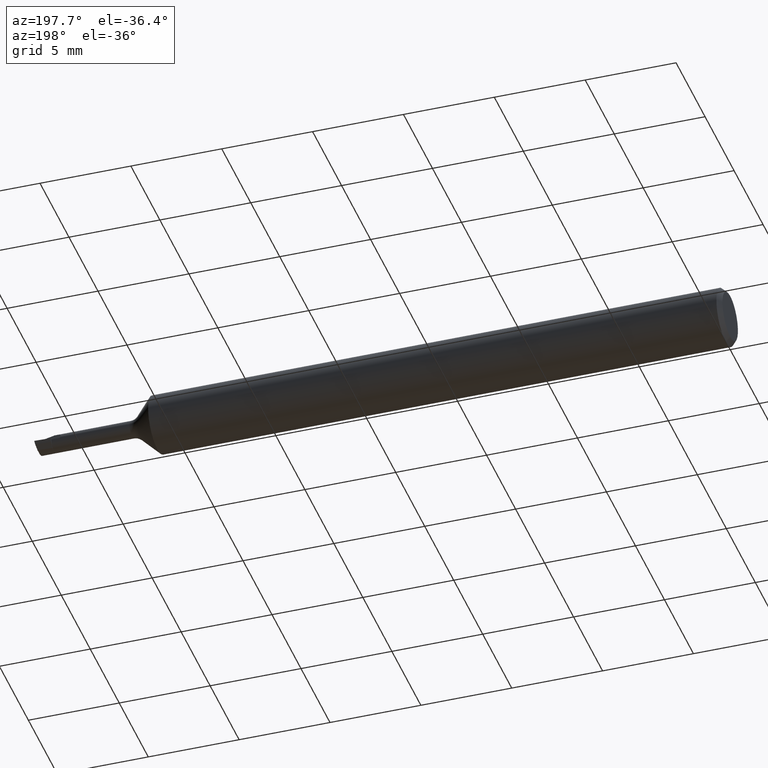
[diagram: clean part render]
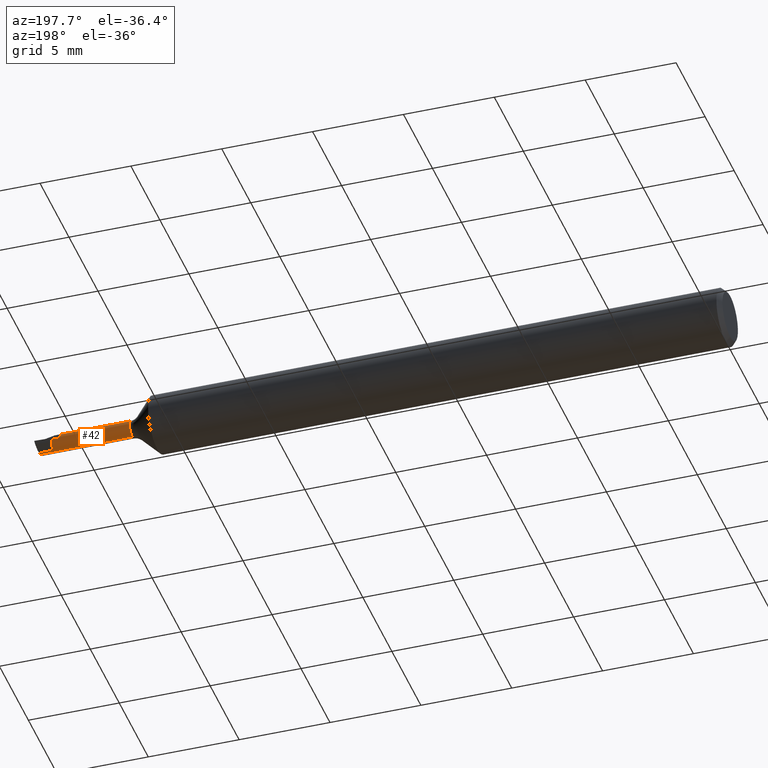
[diagram: same view with one face highlighted and labeled with its STEP entity id]
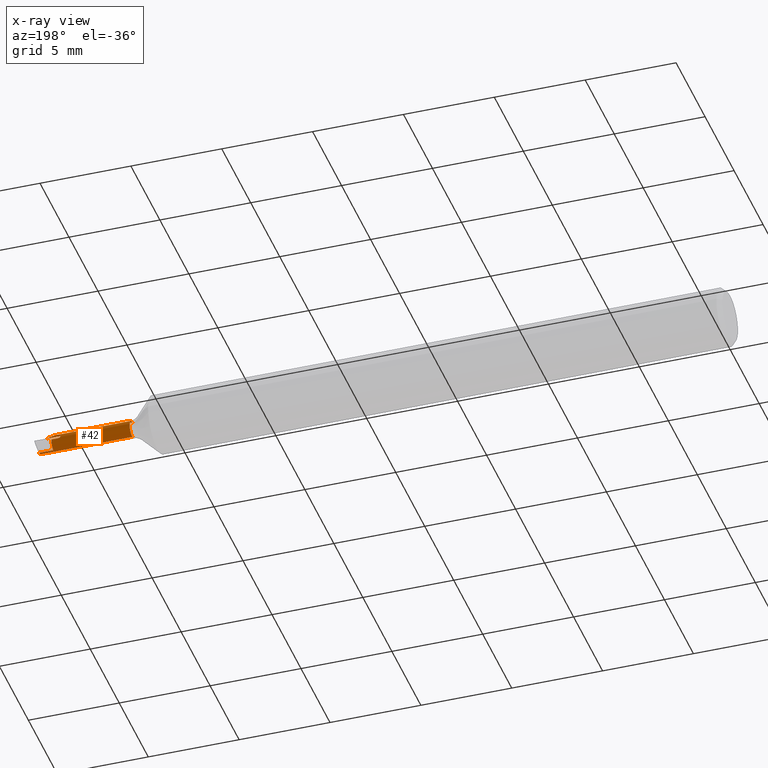
[diagram: x-ray of the same camera — body ghosted, the highlighted face saturated]
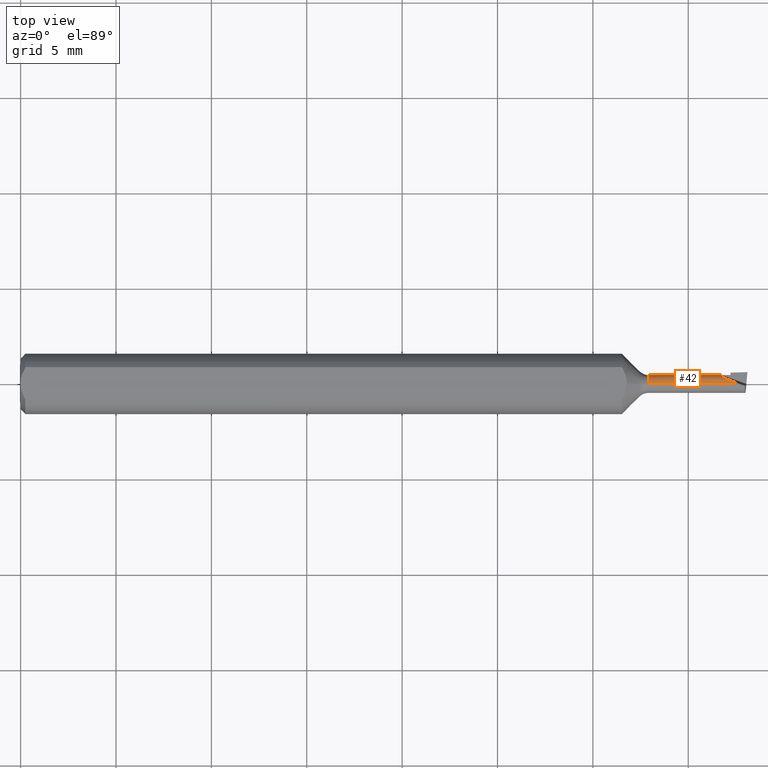
[diagram: same view with one face highlighted and labeled with its STEP entity id]
A machine part, auxiliary view. The second image highlights one B-rep face of the part: STEP entity #42.
The next image is the same camera in x-ray: the body ghosted, the highlighted face saturated — about 0% of this face is hidden behind the body in this view.
A second angle (top view) of the same face is appended — the face is thin or edge-on in the first view.
In plain terms, the highlighted cylindrical surface (edge-blend (fillet) strip) has radius 0.4699 mm, axis along (-1, -0, -0).
Its self-contained STEP definition (entity closure, byte-faithful):
#4 = VECTOR ( 'NONE', #440, 39.37007874015748143 ) ;
#5 = VERTEX_POINT ( 'NONE', #164 ) ;
#6 = CIRCLE ( 'NONE', #452, 0.01849999999999999908 ) ;
#19 =( BOUNDED_CURVE ( )  B_SPLINE_CURVE ( 3, ( #320, #329, #315, #568 ),
 .UNSPECIFIED., .F., .F. ) 
 B_SPLINE_CURVE_WITH_KNOTS ( ( 4, 4 ),
 ( 5.466285219765468995, 5.728084607564618125 ),
 .UNSPECIFIED. ) 
 CURVE ( )  GEOMETRIC_REPRESENTATION_ITEM ( )  RATIONAL_B_SPLINE_CURVE ( ( 1.000000000000000000, 0.9942965742492069214, 0.9942965742492069214, 1.000000000000000000 ) ) 
 REPRESENTATION_ITEM ( '' )  );
#24 = CARTESIAN_POINT ( 'NONE',  ( 1.295355339059327315, 2.265596578422605350E-18, -0.01850000000000001643 ) ) ;
#28 = DIRECTION ( 'NONE',  ( -1.000000000000000000, -0.000000000000000000, -0.000000000000000000 ) ) ;
#31 = CARTESIAN_POINT ( 'NONE',  ( 2.815371162439451627E-33, 0.01850000000000000602, -6.508939666095427711E-17 ) ) ;
#42 = ADVANCED_FACE ( 'NONE', ( #596 ), #464, .T. ) ;
#61 = CARTESIAN_POINT ( 'NONE',  ( 1.483333815684383605, 0.000000000000000000, 0.01850000000000000602 ) ) ;
#62 = DIRECTION ( 'NONE',  ( -1.000000000000000000, -0.000000000000000000, -0.000000000000000000 ) ) ;
#67 = CARTESIAN_POINT ( 'NONE',  ( 1.453559267999332549, 0.01083704909609771970, 0.01850000000000004072 ) ) ;
#72 = DIRECTION ( 'NONE',  ( -1.000000000000000000, -0.000000000000000000, -0.000000000000000000 ) ) ;
#76 = CARTESIAN_POINT ( 'NONE',  ( 1.465000000000000080, 0.004788152334396648772, -0.01786962778634774984 ) ) ;
#101 = ORIENTED_EDGE ( 'NONE', *, *, #115, .T. ) ;
#115 = EDGE_CURVE ( 'NONE', #199, #365, #19, .T. ) ;
#118 = CARTESIAN_POINT ( 'NONE',  ( 1.465000000000000080, 0.000000000000000000, 0.000000000000000000 ) ) ;
#124 = DIRECTION ( 'NONE',  ( 0.000000000000000000, 0.000000000000000000, 1.000000000000000000 ) ) ;
#135 = CARTESIAN_POINT ( 'NONE',  ( 1.465000000000000080, 0.01850000000000000602, -6.508939666095427711E-17 ) ) ;
#152 = AXIS2_PLACEMENT_3D ( 'NONE', #531, #28, #198 ) ;
#162 = VERTEX_POINT ( 'NONE', #76 ) ;
#164 = CARTESIAN_POINT ( 'NONE',  ( 1.446998957439701083, 0.01849999999999999908, -4.483286445232968331E-18 ) ) ;
#171 = VECTOR ( 'NONE', #605, 39.37007874015748143 ) ;
#191 = LINE ( 'NONE', #31, #4 ) ;
#196 = VERTEX_POINT ( 'NONE', #24 ) ;
#198 = DIRECTION ( 'NONE',  ( 0.000000000000000000, 0.000000000000000000, 1.000000000000000000 ) ) ;
#199 = VERTEX_POINT ( 'NONE', #286 ) ;
#204 = EDGE_CURVE ( 'NONE', #5, #245, #191, .T. ) ;
#236 = ORIENTED_EDGE ( 'NONE', *, *, #576, .T. ) ;
#242 = EDGE_LOOP ( 'NONE', ( #101, #390, #385, #301, #236, #569, #378, #247 ) ) ;
#243 = VECTOR ( 'NONE', #72, 39.37007874015748143 ) ;
#245 = VERTEX_POINT ( 'NONE', #135 ) ;
#247 = ORIENTED_EDGE ( 'NONE', *, *, #269, .F. ) ;
#266 = CARTESIAN_POINT ( 'NONE',  ( 0.000000000000000000, 0.000000000000000000, 0.01850000000000000602 ) ) ;
#269 = EDGE_CURVE ( 'NONE', #199, #162, #487, .T. ) ;
#270 = CARTESIAN_POINT ( 'NONE',  ( 1.295355339059327315, 0.000000000000000000, 0.01850000000000001296 ) ) ;
#282 = CIRCLE ( 'NONE', #152, 0.01850000000000001296 ) ;
#286 = CARTESIAN_POINT ( 'NONE',  ( 1.495754431199804557, 0.004788152334396648772, -0.01786962778634774984 ) ) ;
#301 = ORIENTED_EDGE ( 'NONE', *, *, #619, .F. ) ;
#315 = CARTESIAN_POINT ( 'NONE',  ( 1.495388239854692269, 0.001619057209963974077, -0.01850000000000000255 ) ) ;
#319 = CARTESIAN_POINT ( 'NONE',  ( 0.000000000000000000, 2.265596578422604194E-18, -0.01850000000000000602 ) ) ;
#320 = CARTESIAN_POINT ( 'NONE',  ( 1.495754431199804557, 0.004788152334396648772, -0.01786962778634774984 ) ) ;
#324 = CARTESIAN_POINT ( 'NONE',  ( 1.483333815684383605, 0.000000000000000000, 0.01850000000000000602 ) ) ;
#328 = EDGE_CURVE ( 'NONE', #530, #196, #282, .T. ) ;
#329 = CARTESIAN_POINT ( 'NONE',  ( 1.495558491035186899, 0.003224263161052952874, -0.01828867062739698499 ) ) ;
#365 = VERTEX_POINT ( 'NONE', #591 ) ;
#368 = CARTESIAN_POINT ( 'NONE',  ( 1.446998957439701083, 0.01849999999999999908, -4.483286445232968331E-18 ) ) ;
#378 = ORIENTED_EDGE ( 'NONE', *, *, #613, .T. ) ;
#382 = AXIS2_PLACEMENT_3D ( 'NONE', #525, #62, #573 ) ;
#385 = ORIENTED_EDGE ( 'NONE', *, *, #328, .F. ) ;
#386 = CARTESIAN_POINT ( 'NONE',  ( 1.560200597524541877, 0.004788152334396648772, -0.01786962778634774984 ) ) ;
#390 = ORIENTED_EDGE ( 'NONE', *, *, #585, .T. ) ;
#426 = VECTOR ( 'NONE', #485, 39.37007874015748143 ) ;
#440 = DIRECTION ( 'NONE',  ( 1.000000000000000000, 0.000000000000000000, 0.000000000000000000 ) ) ;
#452 = AXIS2_PLACEMENT_3D ( 'NONE', #118, #509, #124 ) ;
#462 = CARTESIAN_POINT ( 'NONE',  ( 1.438508876927481195, 0.01850000000000001643, 0.01083704909609776827 ) ) ;
#464 = CYLINDRICAL_SURFACE ( 'NONE', #382, 0.01850000000000000602 ) ;
#485 = DIRECTION ( 'NONE',  ( -1.000000000000000000, 0.000000000000000000, 0.000000000000000000 ) ) ;
#487 = LINE ( 'NONE', #386, #426 ) ;
#509 = DIRECTION ( 'NONE',  ( -1.000000000000000000, -0.000000000000000000, -0.000000000000000000 ) ) ;
#512 = VERTEX_POINT ( 'NONE', #324 ) ;
#524 = LINE ( 'NONE', #266, #243 ) ;
#525 = CARTESIAN_POINT ( 'NONE',  ( 0.000000000000000000, 0.000000000000000000, 0.000000000000000000 ) ) ;
#530 = VERTEX_POINT ( 'NONE', #270 ) ;
#531 = CARTESIAN_POINT ( 'NONE',  ( 1.295355339059327315, 0.000000000000000000, 0.000000000000000000 ) ) ;
#568 = CARTESIAN_POINT ( 'NONE',  ( 1.495246590703220857, 2.265596578422604194E-18, -0.01850000000000000602 ) ) ;
#569 = ORIENTED_EDGE ( 'NONE', *, *, #204, .T. ) ;
#573 = DIRECTION ( 'NONE',  ( 0.000000000000000000, 0.000000000000000000, 1.000000000000000000 ) ) ;
#576 = EDGE_CURVE ( 'NONE', #512, #5, #597, .T. ) ;
#585 = EDGE_CURVE ( 'NONE', #365, #196, #608, .T. ) ;
#591 = CARTESIAN_POINT ( 'NONE',  ( 1.495246590703220857, 2.265596578422604194E-18, -0.01850000000000000602 ) ) ;
#596 = FACE_OUTER_BOUND ( 'NONE', #242, .T. ) ;
#597 =( BOUNDED_CURVE ( )  B_SPLINE_CURVE ( 3, ( #61, #67, #462, #368 ),
 .UNSPECIFIED., .F., .F. ) 
 B_SPLINE_CURVE_WITH_KNOTS ( ( 4, 4 ),
 ( 4.990162771046300350, 6.560959097841200460 ),
 .UNSPECIFIED. ) 
 CURVE ( )  GEOMETRIC_REPRESENTATION_ITEM ( )  RATIONAL_B_SPLINE_CURVE ( ( 1.000000000000000000, 0.8047378541243641603, 0.8047378541243641603, 1.000000000000000000 ) ) 
 REPRESENTATION_ITEM ( '' )  );
#605 = DIRECTION ( 'NONE',  ( -1.000000000000000000, -0.000000000000000000, -0.000000000000000000 ) ) ;
#608 = LINE ( 'NONE', #319, #171 ) ;
#613 = EDGE_CURVE ( 'NONE', #245, #162, #6, .T. ) ;
#619 = EDGE_CURVE ( 'NONE', #512, #530, #524, .T. ) ;